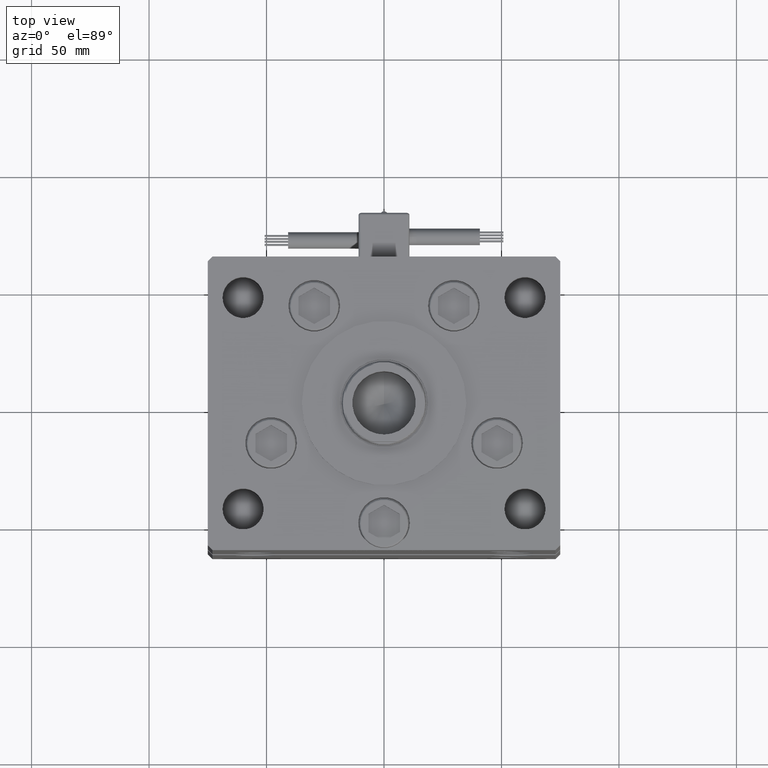
[diagram: clean part render]
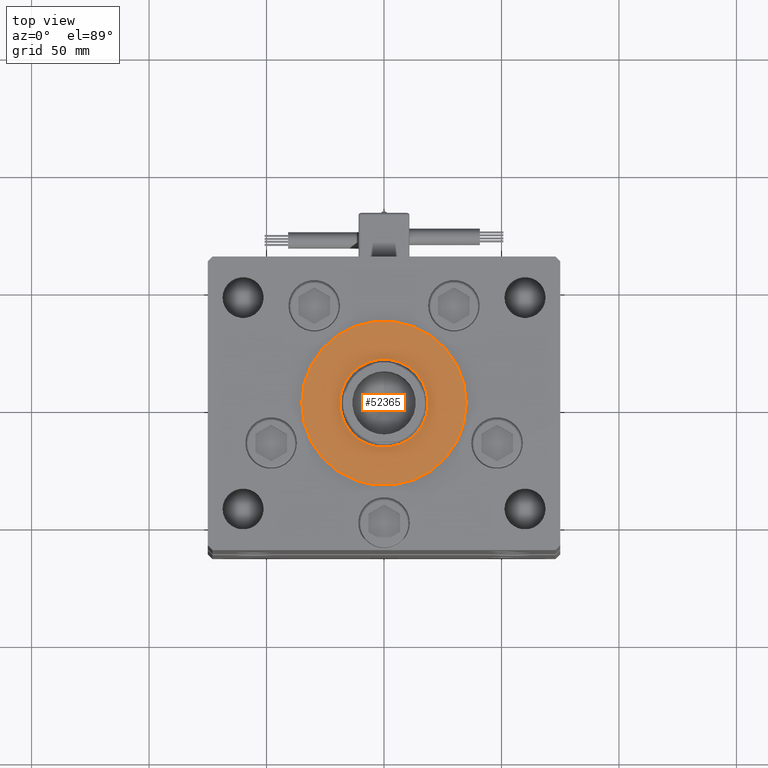
[diagram: same view with one face highlighted and labeled with its STEP entity id]
A machine part, top view. The second image highlights one B-rep face of the part: STEP entity #52365.
In plain terms, the highlighted planar face has unit normal (0, 0, 1).
Its self-contained STEP definition (entity closure, byte-faithful):
#172 = EDGE_LOOP ( 'NONE', ( #46019, #22677 ) ) ;
#1825 = EDGE_CURVE ( 'NONE', #18117, #23090, #35578, .T. ) ;
#3821 = AXIS2_PLACEMENT_3D ( 'NONE', #49177, #53975, #36511 ) ;
#4908 = DIRECTION ( 'NONE',  ( 0.000000000000000000, 0.000000000000000000, 1.000000000000000000 ) ) ;
#5978 = ORIENTED_EDGE ( 'NONE', *, *, #40659, .T. ) ;
#6616 = CARTESIAN_POINT ( 'NONE',  ( 0.000000000000000000, -6.938893903907228378E-15, 2.000000000000000000 ) ) ;
#7384 = CIRCLE ( 'NONE', #3821, 35.00000000000000711 ) ;
#8786 = EDGE_LOOP ( 'NONE', ( #26344, #5978 ) ) ;
#11375 = DIRECTION ( 'NONE',  ( 1.000000000000000000, 0.000000000000000000, 0.000000000000000000 ) ) ;
#12112 = AXIS2_PLACEMENT_3D ( 'NONE', #6616, #23839, #54007 ) ;
#13930 = EDGE_CURVE ( 'NONE', #23339, #24749, #7384, .T. ) ;
#16182 = DIRECTION ( 'NONE',  ( 0.000000000000000000, 0.000000000000000000, 1.000000000000000000 ) ) ;
#16445 = DIRECTION ( 'NONE',  ( 0.000000000000000000, 0.000000000000000000, 1.000000000000000000 ) ) ;
#18117 = VERTEX_POINT ( 'NONE', #53955 ) ;
#22677 = ORIENTED_EDGE ( 'NONE', *, *, #38203, .F. ) ;
#23090 = VERTEX_POINT ( 'NONE', #45083 ) ;
#23339 = VERTEX_POINT ( 'NONE', #26423 ) ;
#23839 = DIRECTION ( 'NONE',  ( 0.000000000000000000, 0.000000000000000000, 1.000000000000000000 ) ) ;
#24749 = VERTEX_POINT ( 'NONE', #29058 ) ;
#26344 = ORIENTED_EDGE ( 'NONE', *, *, #13930, .T. ) ;
#26423 = CARTESIAN_POINT ( 'NONE',  ( -35.00000000000000711, -6.938893903907228378E-15, 2.000000000000000000 ) ) ;
#29058 = CARTESIAN_POINT ( 'NONE',  ( 35.00000000000000711, -2.652630106891490698E-15, 2.000000000000000000 ) ) ;
#29134 = CARTESIAN_POINT ( 'NONE',  ( 0.000000000000000000, -6.938893903907228378E-15, 2.000000000000000000 ) ) ;
#31897 = AXIS2_PLACEMENT_3D ( 'NONE', #37893, #16182, #11375 ) ;
#33648 = DIRECTION ( 'NONE',  ( 1.000000000000000000, 0.000000000000000000, -0.000000000000000000 ) ) ;
#35578 = CIRCLE ( 'NONE', #12112, 18.75000000000000355 ) ;
#36511 = DIRECTION ( 'NONE',  ( 1.000000000000000000, 0.000000000000000000, 0.000000000000000000 ) ) ;
#37893 = CARTESIAN_POINT ( 'NONE',  ( 0.000000000000000000, -6.938893903907228378E-15, 2.000000000000000000 ) ) ;
#38203 = EDGE_CURVE ( 'NONE', #23090, #18117, #45369, .T. ) ;
#39935 = AXIS2_PLACEMENT_3D ( 'NONE', #48346, #4908, #44106 ) ;
#40659 = EDGE_CURVE ( 'NONE', #24749, #23339, #50710, .T. ) ;
#42098 = FACE_OUTER_BOUND ( 'NONE', #8786, .T. ) ;
#44106 = DIRECTION ( 'NONE',  ( 1.000000000000000000, 0.000000000000000000, 0.000000000000000000 ) ) ;
#45083 = CARTESIAN_POINT ( 'NONE',  ( -18.75000000000000355, -4.642681155505941194E-15, 2.000000000000000000 ) ) ;
#45369 = CIRCLE ( 'NONE', #31897, 18.75000000000000355 ) ;
#46019 = ORIENTED_EDGE ( 'NONE', *, *, #1825, .F. ) ;
#48346 = CARTESIAN_POINT ( 'NONE',  ( 0.000000000000000000, -6.938893903907228378E-15, 2.000000000000000000 ) ) ;
#48412 = AXIS2_PLACEMENT_3D ( 'NONE', #29134, #16445, #33648 ) ;
#49177 = CARTESIAN_POINT ( 'NONE',  ( 0.000000000000000000, -6.938893903907228378E-15, 2.000000000000000000 ) ) ;
#50291 = FACE_BOUND ( 'NONE', #172, .T. ) ;
#50556 = PLANE ( 'NONE',  #48412 ) ;
#50710 = CIRCLE ( 'NONE', #39935, 35.00000000000000711 ) ;
#52365 = ADVANCED_FACE ( 'NONE', ( #50291, #42098 ), #50556, .T. ) ;
#53955 = CARTESIAN_POINT ( 'NONE',  ( 18.75000000000000355, -6.938893903907228378E-15, 2.000000000000000000 ) ) ;
#53975 = DIRECTION ( 'NONE',  ( 0.000000000000000000, 0.000000000000000000, 1.000000000000000000 ) ) ;
#54007 = DIRECTION ( 'NONE',  ( 1.000000000000000000, 0.000000000000000000, 0.000000000000000000 ) ) ;